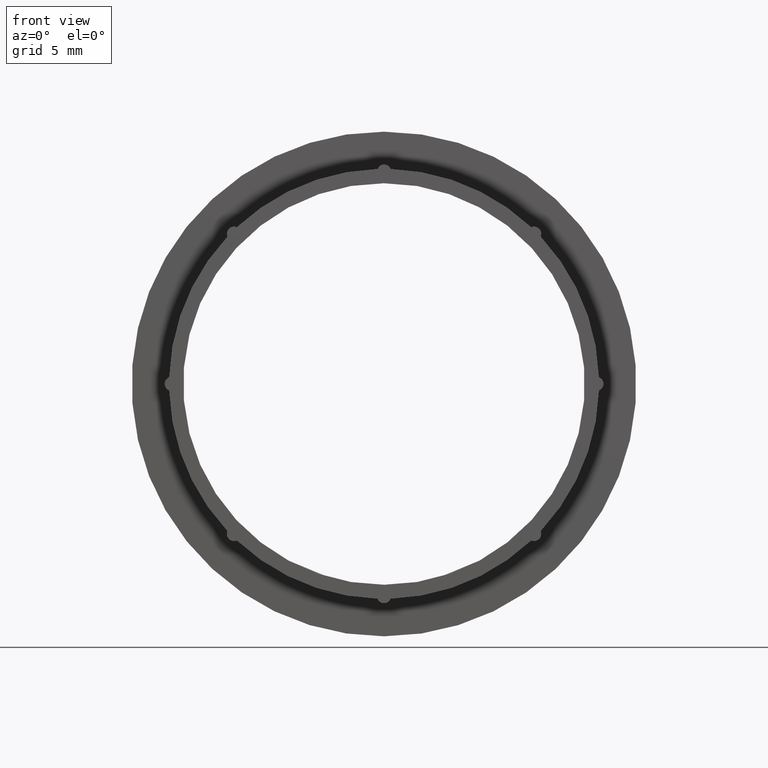
[diagram: clean part render]
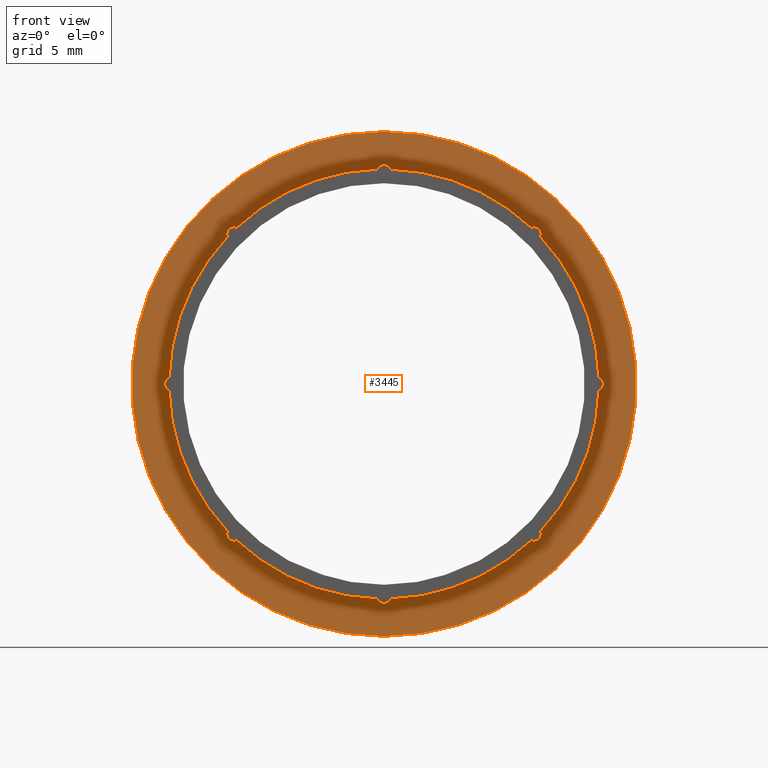
[diagram: same view with one face highlighted and labeled with its STEP entity id]
A machine part, front view. The second image highlights one B-rep face of the part: STEP entity #3445.
In plain terms, the highlighted planar face has unit normal (0, -1, -0).
Its self-contained STEP definition (entity closure, byte-faithful):
#489 = CIRCLE ( 'NONE', #1998, 11.50000000000000000 ) ;
#574 = CARTESIAN_POINT ( 'NONE',  ( 0.000000000000000000, 6.299999999999998934, 0.000000000000000000 ) ) ;
#580 = CARTESIAN_POINT ( 'NONE',  ( 7.139830251852558263, 6.299999999999998934, 6.712884921904372248 ) ) ;
#595 = ORIENTED_EDGE ( 'NONE', *, *, #13015, .T. ) ;
#711 = DIRECTION ( 'NONE',  ( 0.000000000000000000, 0.000000000000000000, -1.000000000000000000 ) ) ;
#723 = CIRCLE ( 'NONE', #8965, 0.3250000000000001221 ) ;
#766 = VERTEX_POINT ( 'NONE', #11302 ) ;
#813 = CARTESIAN_POINT ( 'NONE',  ( -6.712884921904232804, 6.299999999999998934, -7.139830251852691489 ) ) ;
#865 = VERTEX_POINT ( 'NONE', #7316 ) ;
#866 = VERTEX_POINT ( 'NONE', #2004 ) ;
#961 = DIRECTION ( 'NONE',  ( 0.000000000000000000, 1.000000000000000000, 0.000000000000000000 ) ) ;
#1002 = CARTESIAN_POINT ( 'NONE',  ( -6.841258107979810710, 6.299999999999998934, -6.841258107979882652 ) ) ;
#1005 = DIRECTION ( 'NONE',  ( 0.000000000000000000, 0.000000000000000000, -1.000000000000000000 ) ) ;
#1078 = ORIENTED_EDGE ( 'NONE', *, *, #12301, .T. ) ;
#1135 = EDGE_CURVE ( 'NONE', #14168, #10862, #6105, .T. ) ;
#1249 = DIRECTION ( 'NONE',  ( -0.000000000000000000, -1.000000000000000000, -0.000000000000000000 ) ) ;
#1304 = CARTESIAN_POINT ( 'NONE',  ( 0.000000000000000000, 6.299999999999998934, 0.000000000000000000 ) ) ;
#1308 = CARTESIAN_POINT ( 'NONE',  ( 0.000000000000000000, 6.299999999999998934, -9.674999999999998934 ) ) ;
#1411 = CARTESIAN_POINT ( 'NONE',  ( 6.841258107979906633, 6.299999999999998934, -6.841258107979787617 ) ) ;
#1440 = ORIENTED_EDGE ( 'NONE', *, *, #11043, .F. ) ;
#1658 = ORIENTED_EDGE ( 'NONE', *, *, #3459, .T. ) ;
#1764 = CARTESIAN_POINT ( 'NONE',  ( 9.674999999999998934, 6.299999999999998934, 1.013402458599219377E-13 ) ) ;
#1806 = DIRECTION ( 'NONE',  ( 0.000000000000000000, 0.000000000000000000, -1.000000000000000000 ) ) ;
#1940 = VERTEX_POINT ( 'NONE', #12480 ) ;
#1956 = CARTESIAN_POINT ( 'NONE',  ( 0.000000000000000000, 6.299999999999998934, 9.674999999999998934 ) ) ;
#1994 = EDGE_CURVE ( 'NONE', #2143, #9414, #3815, .T. ) ;
#1997 = CARTESIAN_POINT ( 'NONE',  ( 6.712884921904183955, 6.299999999999998934, 7.139830251852737675 ) ) ;
#1998 = AXIS2_PLACEMENT_3D ( 'NONE', #11810, #6228, #8456 ) ;
#2004 = CARTESIAN_POINT ( 'NONE',  ( 0.000000000000000000, 6.299999999999998934, -10.00000000000000000 ) ) ;
#2016 = CARTESIAN_POINT ( 'NONE',  ( 9.795348837209306936, 6.299999999999998934, -0.3018959380023086836 ) ) ;
#2043 = AXIS2_PLACEMENT_3D ( 'NONE', #8146, #12638, #7047 ) ;
#2143 = VERTEX_POINT ( 'NONE', #5585 ) ;
#2228 = VERTEX_POINT ( 'NONE', #3424 ) ;
#2231 = VERTEX_POINT ( 'NONE', #8812 ) ;
#2279 = CARTESIAN_POINT ( 'NONE',  ( -7.139830251852605336, 6.299999999999998934, -6.712884921904320734 ) ) ;
#2356 = DIRECTION ( 'NONE',  ( 0.000000000000000000, 0.000000000000000000, -1.000000000000000000 ) ) ;
#2398 = EDGE_CURVE ( 'NONE', #865, #14217, #3164, .T. ) ;
#2809 = ORIENTED_EDGE ( 'NONE', *, *, #7439, .T. ) ;
#2825 = DIRECTION ( 'NONE',  ( 0.000000000000000000, 1.000000000000000000, 0.000000000000000000 ) ) ;
#2826 = DIRECTION ( 'NONE',  ( -0.000000000000000000, -1.000000000000000000, -0.000000000000000000 ) ) ;
#2885 = AXIS2_PLACEMENT_3D ( 'NONE', #574, #2826, #6467 ) ;
#3097 = CARTESIAN_POINT ( 'NONE',  ( -9.795348837209303383, 6.299999999999998934, -0.3018959380024657246 ) ) ;
#3164 = CIRCLE ( 'NONE', #8903, 9.800000000000000711 ) ;
#3280 = EDGE_CURVE ( 'NONE', #2143, #766, #8610, .T. ) ;
#3318 = EDGE_CURVE ( 'NONE', #11733, #11749, #10889, .T. ) ;
#3424 = CARTESIAN_POINT ( 'NONE',  ( -7.139830251852667509, 6.299999999999998934, 6.712884921904259450 ) ) ;
#3445 = ADVANCED_FACE ( 'NONE', ( #14438, #13023 ), #4773, .T. ) ;
#3459 = EDGE_CURVE ( 'NONE', #2228, #9414, #5637, .T. ) ;
#3539 = DIRECTION ( 'NONE',  ( 0.000000000000000000, 1.000000000000000000, 0.000000000000000000 ) ) ;
#3656 = VERTEX_POINT ( 'NONE', #1997 ) ;
#3682 = CARTESIAN_POINT ( 'NONE',  ( 11.50000000000000000, 6.299999999999998934, 0.000000000000000000 ) ) ;
#3692 = EDGE_CURVE ( 'NONE', #3656, #766, #8424, .T. ) ;
#3749 = AXIS2_PLACEMENT_3D ( 'NONE', #4307, #7595, #8696 ) ;
#3750 = ORIENTED_EDGE ( 'NONE', *, *, #3280, .T. ) ;
#3767 = AXIS2_PLACEMENT_3D ( 'NONE', #4618, #10093, #11186 ) ;
#3779 = EDGE_CURVE ( 'NONE', #2228, #12701, #7393, .T. ) ;
#3799 = ORIENTED_EDGE ( 'NONE', *, *, #10644, .T. ) ;
#3815 = CIRCLE ( 'NONE', #8337, 9.800000000000000711 ) ;
#3825 = ORIENTED_EDGE ( 'NONE', *, *, #5881, .T. ) ;
#3827 = DIRECTION ( 'NONE',  ( 0.000000000000000000, 0.000000000000000000, -1.000000000000000000 ) ) ;
#3925 = DIRECTION ( 'NONE',  ( 0.000000000000000000, 1.000000000000000000, 0.000000000000000000 ) ) ;
#4043 = CARTESIAN_POINT ( 'NONE',  ( 0.000000000000000000, 6.299999999999998934, -9.674999999999998934 ) ) ;
#4048 = CARTESIAN_POINT ( 'NONE',  ( 6.841258107979906633, 6.299999999999998934, -7.166258107979787795 ) ) ;
#4219 = CARTESIAN_POINT ( 'NONE',  ( 0.000000000000000000, 6.299999999999998934, 0.000000000000000000 ) ) ;
#4251 = EDGE_LOOP ( 'NONE', ( #2809, #1440, #8409, #7573, #10804, #4914, #8192, #3799, #595, #6317, #12415, #1078, #8370, #3825, #7086, #1658, #8948, #3750, #14522 ) ) ;
#4307 = CARTESIAN_POINT ( 'NONE',  ( 6.841258107979906633, 6.299999999999998934, -6.841258107979787617 ) ) ;
#4308 = AXIS2_PLACEMENT_3D ( 'NONE', #1411, #13761, #10389 ) ;
#4410 = EDGE_CURVE ( 'NONE', #5814, #2231, #13007, .T. ) ;
#4516 = AXIS2_PLACEMENT_3D ( 'NONE', #9906, #13265, #8811 ) ;
#4607 = DIRECTION ( 'NONE',  ( -8.881784197001238518E-16, 0.000000000000000000, -1.000000000000000000 ) ) ;
#4611 = ORIENTED_EDGE ( 'NONE', *, *, #12234, .T. ) ;
#4612 = CARTESIAN_POINT ( 'NONE',  ( -6.712884921904283431, 6.299999999999998934, 7.139830251852645304 ) ) ;
#4618 = CARTESIAN_POINT ( 'NONE',  ( 0.000000000000000000, 6.299999999999998934, 0.000000000000000000 ) ) ;
#4773 = PLANE ( 'NONE',  #13842 ) ;
#4819 = DIRECTION ( 'NONE',  ( 0.000000000000000000, -1.000000000000000000, -0.000000000000000000 ) ) ;
#4914 = ORIENTED_EDGE ( 'NONE', *, *, #1135, .T. ) ;
#5073 = CARTESIAN_POINT ( 'NONE',  ( 0.000000000000000000, 6.299999999999998934, -11.50000000000000000 ) ) ;
#5395 = CARTESIAN_POINT ( 'NONE',  ( 0.000000000000000000, 6.299999999999998934, 0.000000000000000000 ) ) ;
#5459 = DIRECTION ( 'NONE',  ( 0.000000000000000000, 0.000000000000000000, -1.000000000000000000 ) ) ;
#5585 = CARTESIAN_POINT ( 'NONE',  ( -0.3018959380024315298, 6.299999999999998934, 9.795348837209305159 ) ) ;
#5586 = VERTEX_POINT ( 'NONE', #2279 ) ;
#5637 = CIRCLE ( 'NONE', #13381, 0.3249999999999997891 ) ;
#5814 = VERTEX_POINT ( 'NONE', #813 ) ;
#5839 = DIRECTION ( 'NONE',  ( 0.000000000000000000, 0.000000000000000000, -1.000000000000000000 ) ) ;
#5881 = EDGE_CURVE ( 'NONE', #9301, #12701, #9443, .T. ) ;
#6014 = EDGE_CURVE ( 'NONE', #1940, #10862, #13870, .T. ) ;
#6105 = CIRCLE ( 'NONE', #3749, 0.3249999999999997891 ) ;
#6200 = AXIS2_PLACEMENT_3D ( 'NONE', #1002, #961, #12110 ) ;
#6228 = DIRECTION ( 'NONE',  ( -0.000000000000000000, -1.000000000000000000, -0.000000000000000000 ) ) ;
#6310 = AXIS2_PLACEMENT_3D ( 'NONE', #1304, #7832, #9084 ) ;
#6317 = ORIENTED_EDGE ( 'NONE', *, *, #4410, .F. ) ;
#6424 = CARTESIAN_POINT ( 'NONE',  ( 9.795348837209301607, 6.299999999999998934, 0.3018959380025341699 ) ) ;
#6467 = DIRECTION ( 'NONE',  ( 0.000000000000000000, 0.000000000000000000, -1.000000000000000000 ) ) ;
#6598 = CIRCLE ( 'NONE', #6200, 0.3249999999999997891 ) ;
#6697 = EDGE_CURVE ( 'NONE', #12421, #14217, #723, .T. ) ;
#7047 = DIRECTION ( 'NONE',  ( 0.000000000000000000, 0.000000000000000000, -1.000000000000000000 ) ) ;
#7086 = ORIENTED_EDGE ( 'NONE', *, *, #3779, .F. ) ;
#7254 = AXIS2_PLACEMENT_3D ( 'NONE', #1956, #12184, #5459 ) ;
#7316 = CARTESIAN_POINT ( 'NONE',  ( 7.139830251852714582, 6.299999999999998934, -6.712884921904207935 ) ) ;
#7393 = CIRCLE ( 'NONE', #6310, 9.800000000000000711 ) ;
#7407 = DIRECTION ( 'NONE',  ( 0.000000000000000000, 1.000000000000000000, 0.000000000000000000 ) ) ;
#7439 = EDGE_CURVE ( 'NONE', #3656, #13678, #12808, .T. ) ;
#7573 = ORIENTED_EDGE ( 'NONE', *, *, #2398, .F. ) ;
#7595 = DIRECTION ( 'NONE',  ( 0.000000000000000000, 1.000000000000000000, 0.000000000000000000 ) ) ;
#7600 = DIRECTION ( 'NONE',  ( -0.000000000000000000, -1.000000000000000000, -0.000000000000000000 ) ) ;
#7794 = DIRECTION ( 'NONE',  ( 0.000000000000000000, 1.000000000000000000, 0.000000000000000000 ) ) ;
#7832 = DIRECTION ( 'NONE',  ( -0.000000000000000000, -1.000000000000000000, -0.000000000000000000 ) ) ;
#8146 = CARTESIAN_POINT ( 'NONE',  ( 0.000000000000000000, 6.299999999999998934, 0.000000000000000000 ) ) ;
#8192 = ORIENTED_EDGE ( 'NONE', *, *, #6014, .F. ) ;
#8334 = EDGE_CURVE ( 'NONE', #9301, #5586, #9252, .T. ) ;
#8337 = AXIS2_PLACEMENT_3D ( 'NONE', #4219, #7600, #1005 ) ;
#8370 = ORIENTED_EDGE ( 'NONE', *, *, #8334, .F. ) ;
#8405 = CARTESIAN_POINT ( 'NONE',  ( -6.841258107979810710, 6.299999999999998934, -6.841258107979882652 ) ) ;
#8409 = ORIENTED_EDGE ( 'NONE', *, *, #6697, .T. ) ;
#8424 = CIRCLE ( 'NONE', #4516, 9.800000000000000711 ) ;
#8456 = DIRECTION ( 'NONE',  ( 0.000000000000000000, 0.000000000000000000, -1.000000000000000000 ) ) ;
#8479 = DIRECTION ( 'NONE',  ( 0.000000000000000000, 1.000000000000000000, 0.000000000000000000 ) ) ;
#8610 = CIRCLE ( 'NONE', #7254, 0.3250000000000006217 ) ;
#8654 = DIRECTION ( 'NONE',  ( -0.000000000000000000, -1.000000000000000000, -0.000000000000000000 ) ) ;
#8656 = DIRECTION ( 'NONE',  ( 0.000000000000000000, 0.000000000000000000, -1.000000000000000000 ) ) ;
#8696 = DIRECTION ( 'NONE',  ( 0.000000000000000000, 0.000000000000000000, -1.000000000000000000 ) ) ;
#8800 = AXIS2_PLACEMENT_3D ( 'NONE', #10118, #1249, #2356 ) ;
#8803 = DIRECTION ( 'NONE',  ( 0.000000000000000000, 0.000000000000000000, -1.000000000000000000 ) ) ;
#8811 = DIRECTION ( 'NONE',  ( 0.000000000000000000, 0.000000000000000000, -1.000000000000000000 ) ) ;
#8812 = CARTESIAN_POINT ( 'NONE',  ( -0.3018959380024112682, 6.299999999999998934, -9.795348837209303383 ) ) ;
#8903 = AXIS2_PLACEMENT_3D ( 'NONE', #5395, #13259, #8656 ) ;
#8948 = ORIENTED_EDGE ( 'NONE', *, *, #1994, .F. ) ;
#8965 = AXIS2_PLACEMENT_3D ( 'NONE', #1764, #2825, #711 ) ;
#9084 = DIRECTION ( 'NONE',  ( 0.000000000000000000, 0.000000000000000000, -1.000000000000000000 ) ) ;
#9088 = AXIS2_PLACEMENT_3D ( 'NONE', #4043, #8479, #1806 ) ;
#9252 = CIRCLE ( 'NONE', #2885, 9.800000000000000711 ) ;
#9301 = VERTEX_POINT ( 'NONE', #3097 ) ;
#9352 = CIRCLE ( 'NONE', #9088, 0.3250000000000006217 ) ;
#9375 = VERTEX_POINT ( 'NONE', #10138 ) ;
#9397 = CIRCLE ( 'NONE', #4308, 0.3249999999999997891 ) ;
#9414 = VERTEX_POINT ( 'NONE', #4612 ) ;
#9443 = CIRCLE ( 'NONE', #11776, 0.3250000000000001221 ) ;
#9893 = CARTESIAN_POINT ( 'NONE',  ( -9.795348837209306936, 6.299999999999998934, 0.3018959380023771288 ) ) ;
#9906 = CARTESIAN_POINT ( 'NONE',  ( 0.000000000000000000, 6.299999999999998934, 0.000000000000000000 ) ) ;
#9942 = CARTESIAN_POINT ( 'NONE',  ( 0.000000000000000000, 6.299999999999998934, 0.000000000000000000 ) ) ;
#10093 = DIRECTION ( 'NONE',  ( -0.000000000000000000, -1.000000000000000000, -0.000000000000000000 ) ) ;
#10118 = CARTESIAN_POINT ( 'NONE',  ( 0.000000000000000000, 6.299999999999998934, 0.000000000000000000 ) ) ;
#10138 = CARTESIAN_POINT ( 'NONE',  ( -6.841258107979810710, 6.299999999999998934, -7.166258107979882830 ) ) ;
#10238 = EDGE_CURVE ( 'NONE', #865, #14168, #9397, .T. ) ;
#10281 = CIRCLE ( 'NONE', #8800, 9.800000000000000711 ) ;
#10389 = DIRECTION ( 'NONE',  ( -2.668805347656628059E-15, 0.000000000000000000, -1.000000000000000000 ) ) ;
#10530 = CARTESIAN_POINT ( 'NONE',  ( 6.841258107979763636, 6.299999999999998934, 6.841258107979929726 ) ) ;
#10644 = EDGE_CURVE ( 'NONE', #1940, #866, #10800, .T. ) ;
#10753 = AXIS2_PLACEMENT_3D ( 'NONE', #10530, #3925, #3827 ) ;
#10780 = AXIS2_PLACEMENT_3D ( 'NONE', #1308, #7794, #4607 ) ;
#10800 = CIRCLE ( 'NONE', #10780, 0.3250000000000006217 ) ;
#10804 = ORIENTED_EDGE ( 'NONE', *, *, #10238, .T. ) ;
#10862 = VERTEX_POINT ( 'NONE', #13987 ) ;
#10889 = CIRCLE ( 'NONE', #3767, 11.50000000000000000 ) ;
#11043 = EDGE_CURVE ( 'NONE', #12421, #13678, #10281, .T. ) ;
#11186 = DIRECTION ( 'NONE',  ( 0.000000000000000000, 0.000000000000000000, -1.000000000000000000 ) ) ;
#11302 = CARTESIAN_POINT ( 'NONE',  ( 0.3018959380024315298, 6.299999999999998934, 9.795348837209305159 ) ) ;
#11468 = DIRECTION ( 'NONE',  ( 0.000000000000000000, 0.000000000000000000, -1.000000000000000000 ) ) ;
#11516 = CARTESIAN_POINT ( 'NONE',  ( -6.841258107979859560, 6.299999999999998934, 6.841258107979835579 ) ) ;
#11733 = VERTEX_POINT ( 'NONE', #12819 ) ;
#11749 = VERTEX_POINT ( 'NONE', #5073 ) ;
#11776 = AXIS2_PLACEMENT_3D ( 'NONE', #14339, #12006, #8803 ) ;
#11810 = CARTESIAN_POINT ( 'NONE',  ( 0.000000000000000000, 6.299999999999998934, 0.000000000000000000 ) ) ;
#11839 = CIRCLE ( 'NONE', #14481, 0.3249999999999997891 ) ;
#12006 = DIRECTION ( 'NONE',  ( 0.000000000000000000, 1.000000000000000000, 0.000000000000000000 ) ) ;
#12110 = DIRECTION ( 'NONE',  ( 0.000000000000000000, 0.000000000000000000, -1.000000000000000000 ) ) ;
#12184 = DIRECTION ( 'NONE',  ( 0.000000000000000000, 1.000000000000000000, 0.000000000000000000 ) ) ;
#12233 = ORIENTED_EDGE ( 'NONE', *, *, #3318, .T. ) ;
#12234 = EDGE_CURVE ( 'NONE', #11749, #11733, #489, .T. ) ;
#12257 = EDGE_CURVE ( 'NONE', #5814, #9375, #11839, .T. ) ;
#12301 = EDGE_CURVE ( 'NONE', #9375, #5586, #6598, .T. ) ;
#12415 = ORIENTED_EDGE ( 'NONE', *, *, #12257, .T. ) ;
#12421 = VERTEX_POINT ( 'NONE', #6424 ) ;
#12480 = CARTESIAN_POINT ( 'NONE',  ( 0.3018959380024315298, 6.299999999999998934, -9.795348837209305159 ) ) ;
#12638 = DIRECTION ( 'NONE',  ( -0.000000000000000000, -1.000000000000000000, -0.000000000000000000 ) ) ;
#12701 = VERTEX_POINT ( 'NONE', #9893 ) ;
#12808 = CIRCLE ( 'NONE', #10753, 0.3249999999999997891 ) ;
#12819 = CARTESIAN_POINT ( 'NONE',  ( 1.408343819019456176E-15, 6.299999999999998934, 11.50000000000000000 ) ) ;
#12948 = DIRECTION ( 'NONE',  ( 0.000000000000000000, 0.000000000000000000, -1.000000000000000000 ) ) ;
#13007 = CIRCLE ( 'NONE', #14322, 9.800000000000000711 ) ;
#13015 = EDGE_CURVE ( 'NONE', #866, #2231, #9352, .T. ) ;
#13023 = FACE_OUTER_BOUND ( 'NONE', #14003, .T. ) ;
#13210 = DIRECTION ( 'NONE',  ( 0.000000000000000000, 0.000000000000000000, -1.000000000000000000 ) ) ;
#13259 = DIRECTION ( 'NONE',  ( -0.000000000000000000, -1.000000000000000000, -0.000000000000000000 ) ) ;
#13265 = DIRECTION ( 'NONE',  ( -0.000000000000000000, -1.000000000000000000, -0.000000000000000000 ) ) ;
#13381 = AXIS2_PLACEMENT_3D ( 'NONE', #11516, #3539, #11468 ) ;
#13678 = VERTEX_POINT ( 'NONE', #580 ) ;
#13761 = DIRECTION ( 'NONE',  ( 0.000000000000000000, 1.000000000000000000, 0.000000000000000000 ) ) ;
#13842 = AXIS2_PLACEMENT_3D ( 'NONE', #3682, #4819, #5839 ) ;
#13870 = CIRCLE ( 'NONE', #2043, 9.800000000000000711 ) ;
#13987 = CARTESIAN_POINT ( 'NONE',  ( 6.712884921904346491, 6.299999999999998934, -7.139830251852584020 ) ) ;
#14003 = EDGE_LOOP ( 'NONE', ( #4611, #12233 ) ) ;
#14168 = VERTEX_POINT ( 'NONE', #4048 ) ;
#14217 = VERTEX_POINT ( 'NONE', #2016 ) ;
#14322 = AXIS2_PLACEMENT_3D ( 'NONE', #9942, #8654, #13210 ) ;
#14339 = CARTESIAN_POINT ( 'NONE',  ( -9.674999999999998934, 6.299999999999998934, -3.378008195330731679E-14 ) ) ;
#14438 = FACE_BOUND ( 'NONE', #4251, .T. ) ;
#14481 = AXIS2_PLACEMENT_3D ( 'NONE', #8405, #7407, #12948 ) ;
#14522 = ORIENTED_EDGE ( 'NONE', *, *, #3692, .F. ) ;